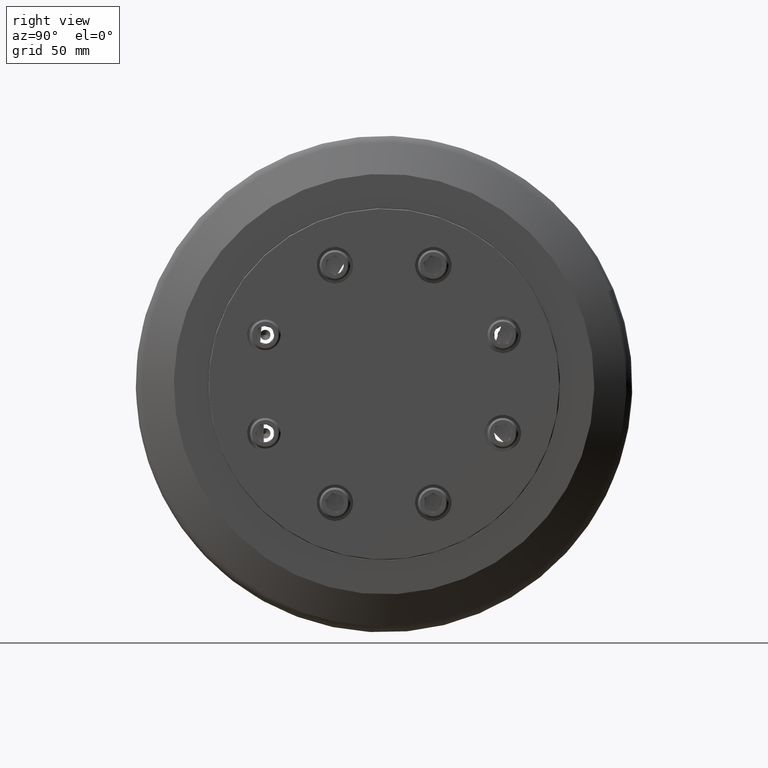
[diagram: clean part render]
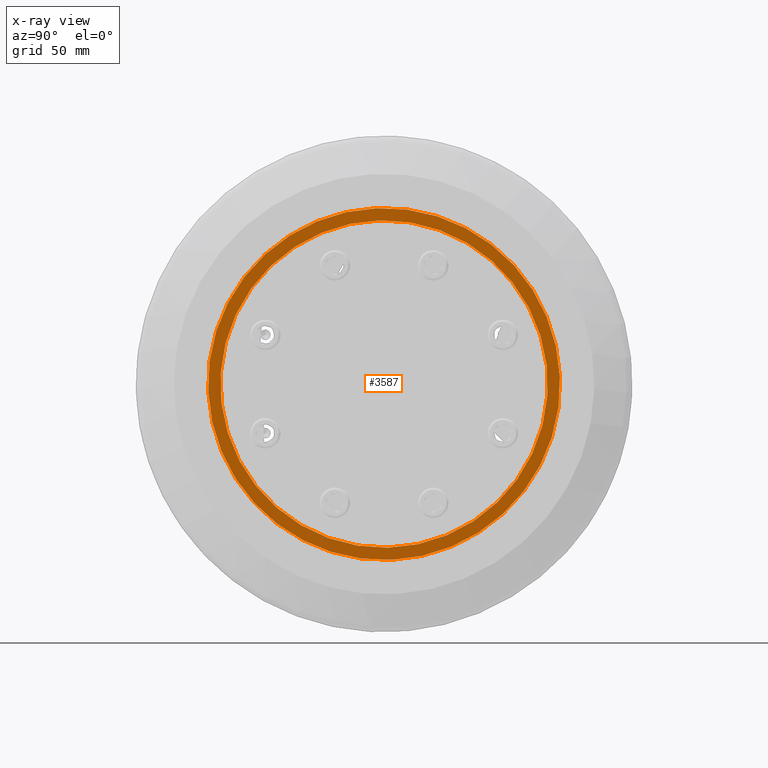
[diagram: x-ray — body ghosted, one internal face saturated and labeled with its STEP entity id]
A machine part, right view, then the same camera in x-ray: the body is ghosted and one INTERNAL B-rep face — a face not visible from any outside direction — is saturated and labeled: STEP entity #3587.
In plain terms, the highlighted planar face has unit normal (-1, -0, -0).
Its self-contained STEP definition (entity closure, byte-faithful):
#91=FACE_BOUND('',#746,.T.);
#236=CIRCLE('',#3917,120.5);
#237=CIRCLE('',#3918,120.5);
#278=CIRCLE('',#3977,112.1);
#279=CIRCLE('',#3978,112.1);
#520=FACE_OUTER_BOUND('',#745,.T.);
#745=EDGE_LOOP('',(#2835,#2836));
#746=EDGE_LOOP('',(#2837,#2838));
#1484=VERTEX_POINT('',#5897);
#1485=VERTEX_POINT('',#5899);
#1526=VERTEX_POINT('',#6008);
#1527=VERTEX_POINT('',#6009);
#1939=EDGE_CURVE('',#1484,#1485,#236,.T.);
#1940=EDGE_CURVE('',#1485,#1484,#237,.T.);
#1989=EDGE_CURVE('',#1526,#1527,#278,.T.);
#1990=EDGE_CURVE('',#1527,#1526,#279,.T.);
#2835=ORIENTED_EDGE('',*,*,#1940,.F.);
#2836=ORIENTED_EDGE('',*,*,#1939,.F.);
#2837=ORIENTED_EDGE('',*,*,#1989,.T.);
#2838=ORIENTED_EDGE('',*,*,#1990,.T.);
#3227=PLANE('',#3979);
#3587=ADVANCED_FACE('',(#520,#91),#3227,.T.);
#3917=AXIS2_PLACEMENT_3D('',#5900,#4685,#4686);
#3918=AXIS2_PLACEMENT_3D('',#5901,#4687,#4688);
#3977=AXIS2_PLACEMENT_3D('',#6010,#4813,#4814);
#3978=AXIS2_PLACEMENT_3D('',#6011,#4815,#4816);
#3979=AXIS2_PLACEMENT_3D('',#6013,#4818,#4819);
#4685=DIRECTION('center_axis',(1.,2.13376427274459E-16,2.07559621180467E-31));
#4686=DIRECTION('ref_axis',(8.16556235751895E-17,-0.382683432365089,0.923879532511287));
#4687=DIRECTION('center_axis',(1.,2.13376427274459E-16,2.07559621180467E-31));
#4688=DIRECTION('ref_axis',(8.16556235751895E-17,-0.382683432365089,0.923879532511287));
#4813=DIRECTION('center_axis',(1.,2.13376427274459E-16,2.07559621180467E-31));
#4814=DIRECTION('ref_axis',(8.16556235751895E-17,-0.382683432365089,0.923879532511287));
#4815=DIRECTION('center_axis',(1.,2.13376427274459E-16,2.07559621180467E-31));
#4816=DIRECTION('ref_axis',(8.16556235751895E-17,-0.382683432365089,0.923879532511287));
#4818=DIRECTION('center_axis',(-1.,-2.13376427274459E-16,-2.07559621180467E-31));
#4819=DIRECTION('ref_axis',(1.97134113879256E-16,-0.923879532511287,-0.382683432365089));
#5897=CARTESIAN_POINT('',(12.8505240960523,-35.04679214358,-140.977606950058));
#5899=CARTESIAN_POINT('',(12.8505240960523,-127.273499343566,81.6773603851623));
#5900=CARTESIAN_POINT('Origin',(12.8505240960523,-81.1601457435732,-29.6501232824478));
#5901=CARTESIAN_POINT('Origin',(12.8505240960523,-81.1601457435732,-29.6501232824478));
#6008=CARTESIAN_POINT('',(12.8505240960523,-124.0589585117,73.9167723120675));
#6009=CARTESIAN_POINT('',(12.8505240960523,-38.2613329754467,-133.217018876963));
#6010=CARTESIAN_POINT('Origin',(12.8505240960523,-81.1601457435732,-29.6501232824478));
#6011=CARTESIAN_POINT('Origin',(12.8505240960523,-81.1601457435732,-29.6501232824478));
#6013=CARTESIAN_POINT('Origin',(12.8505240960523,-125.666228927633,77.7970663486149));